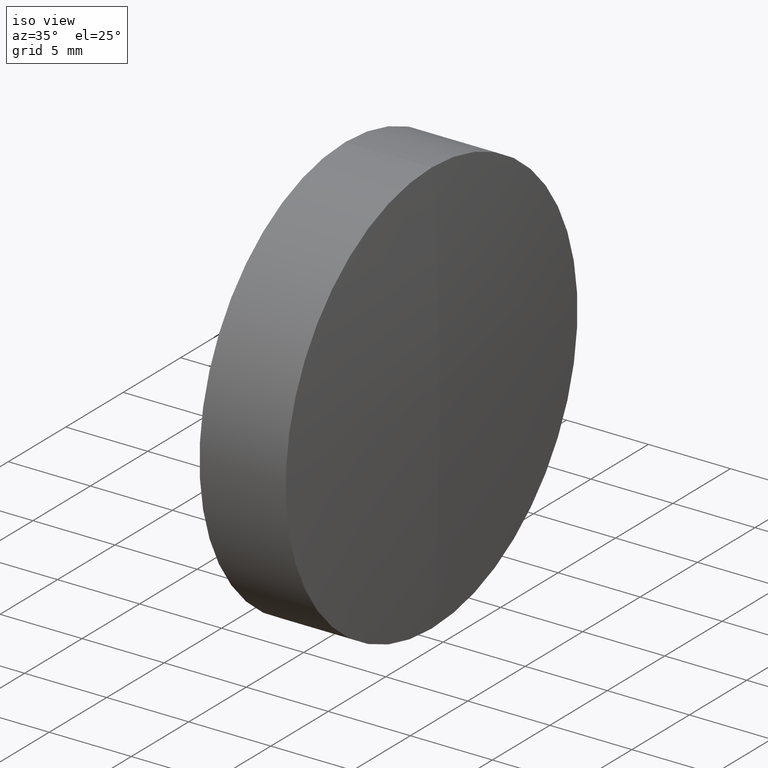
[diagram: clean part render]
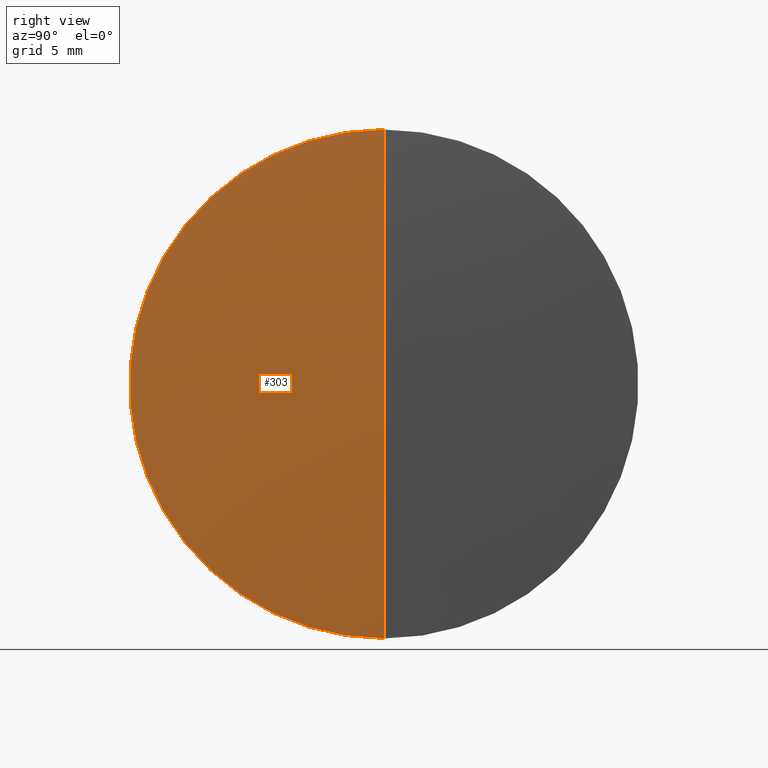
[diagram: tour spotlight — one face highlighted and labeled with its STEP entity id]
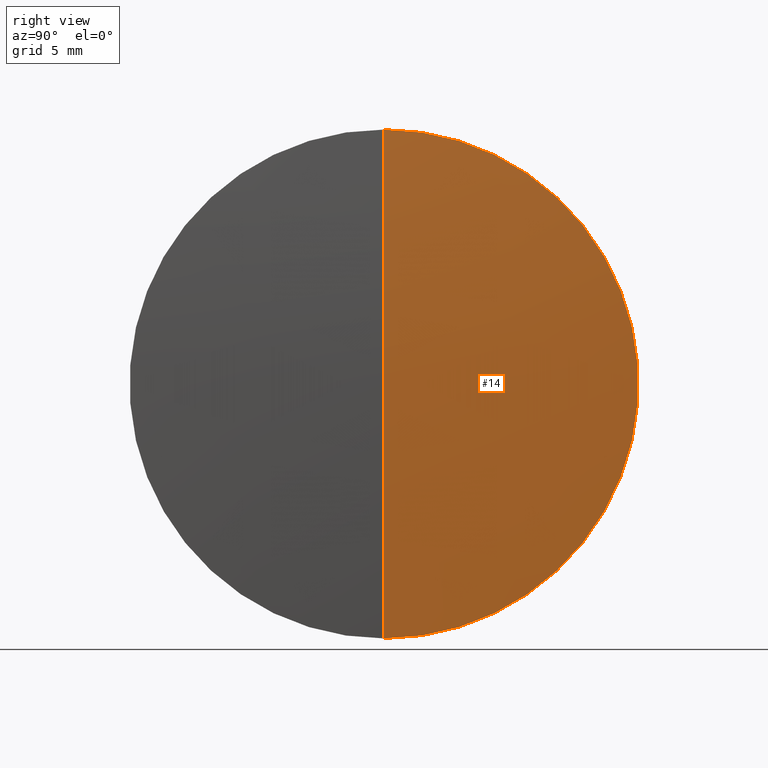
[diagram: tour spotlight — one face highlighted and labeled with its STEP entity id]
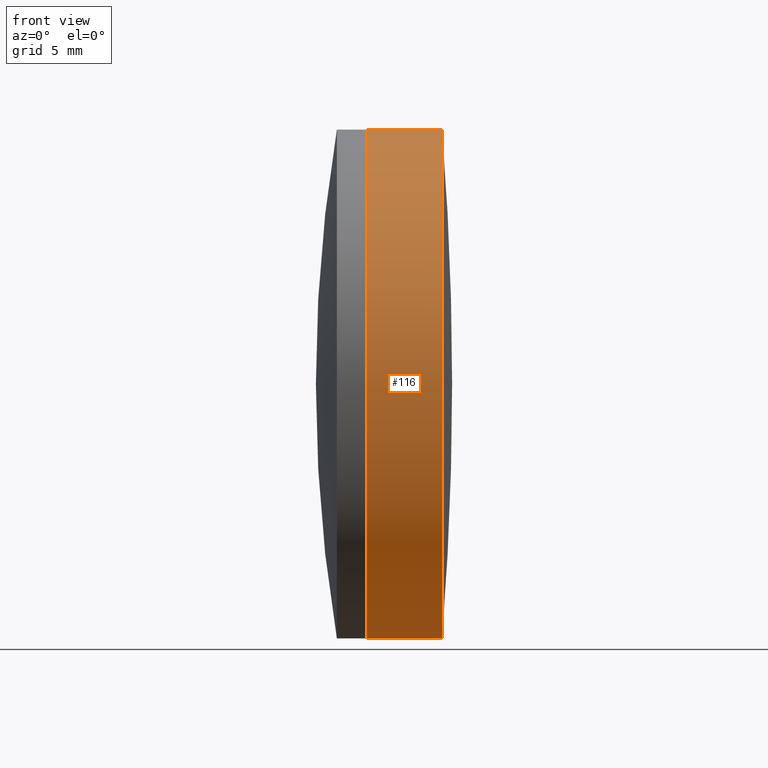
[diagram: tour spotlight — one face highlighted and labeled with its STEP entity id]
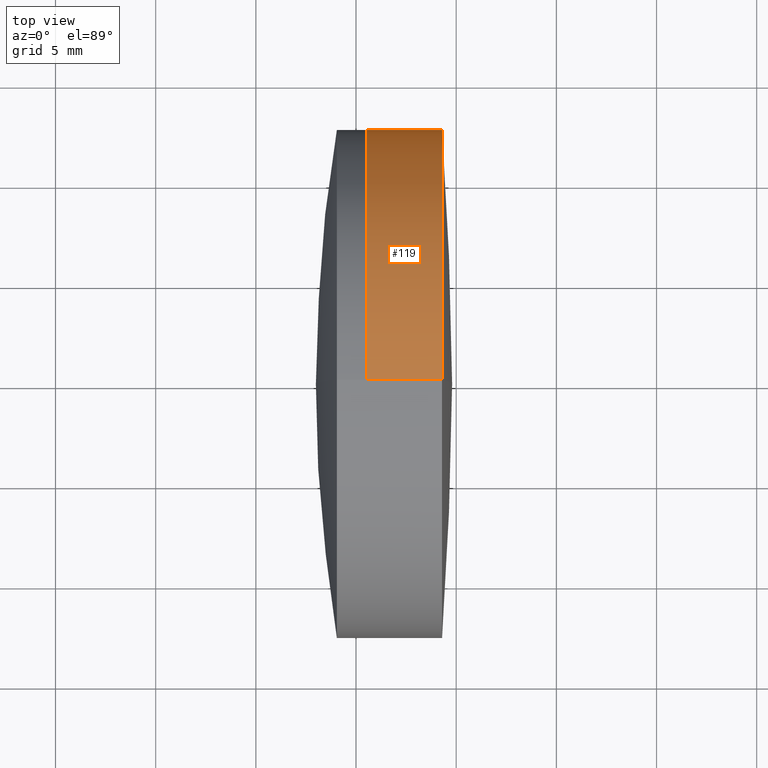
[diagram: tour spotlight — one face highlighted and labeled with its STEP entity id]
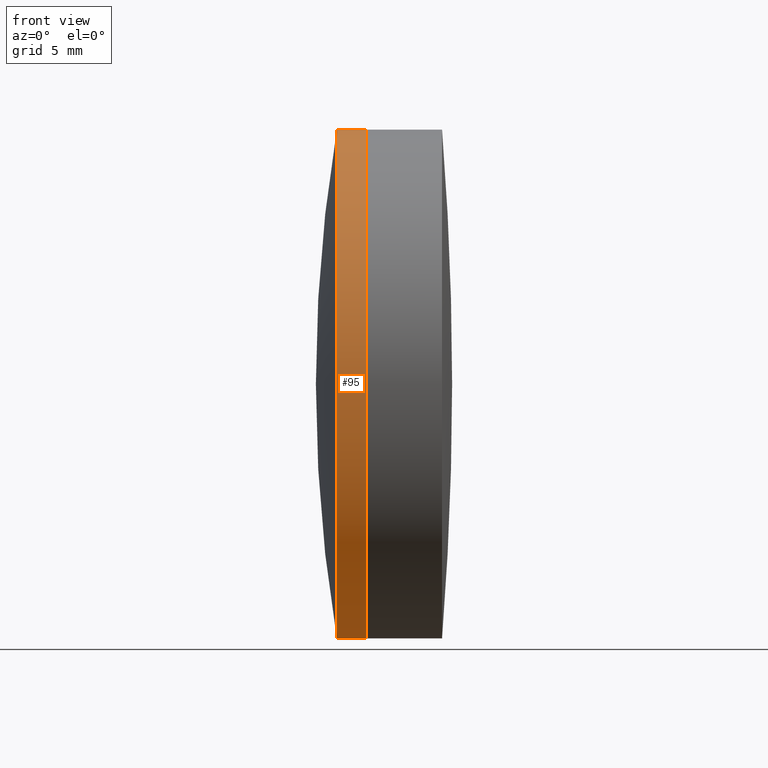
[diagram: tour spotlight — one face highlighted and labeled with its STEP entity id]
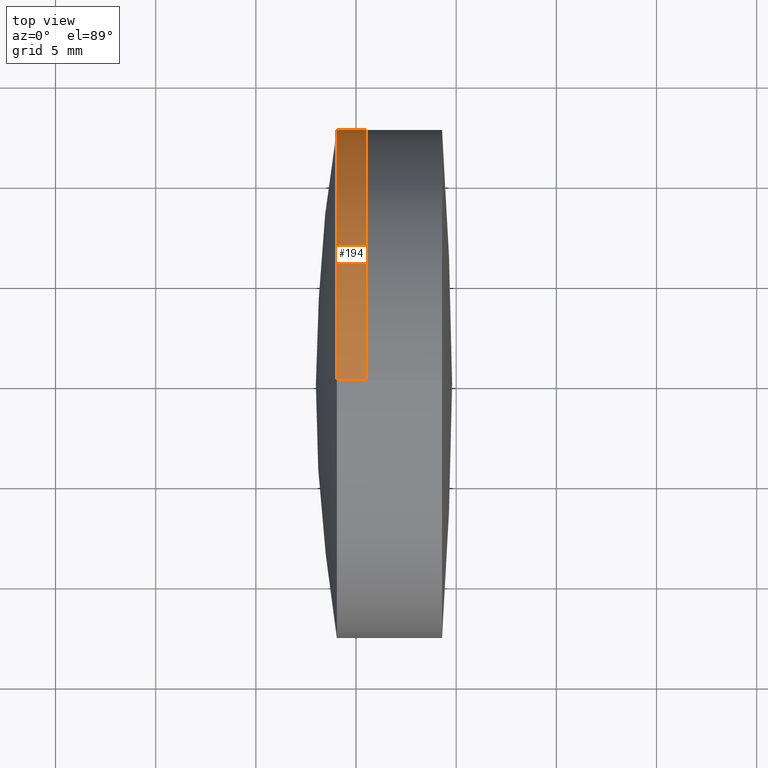
[diagram: tour spotlight — one face highlighted and labeled with its STEP entity id]
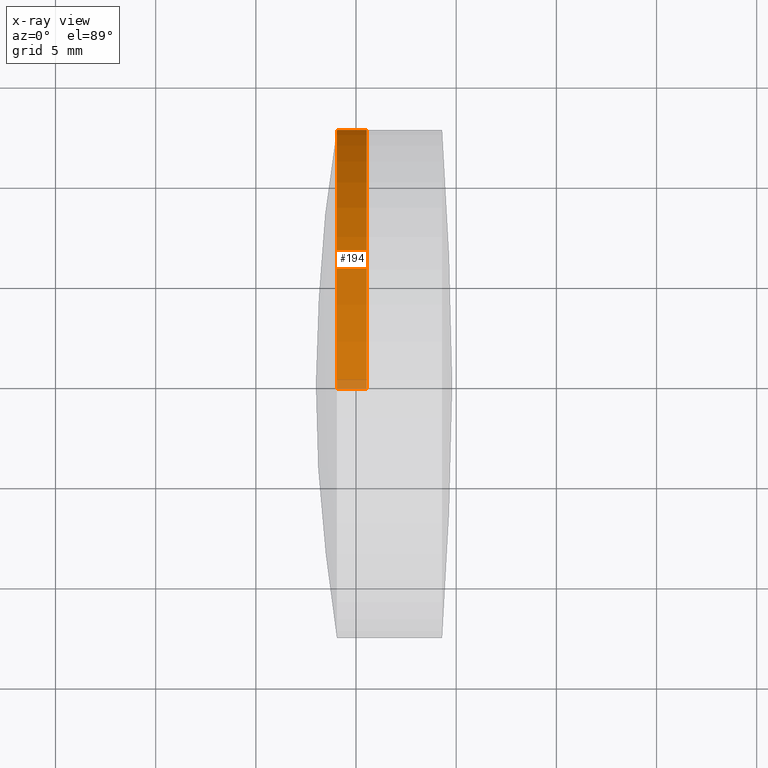
[diagram: x-ray of the same camera — body ghosted, this tour face saturated]
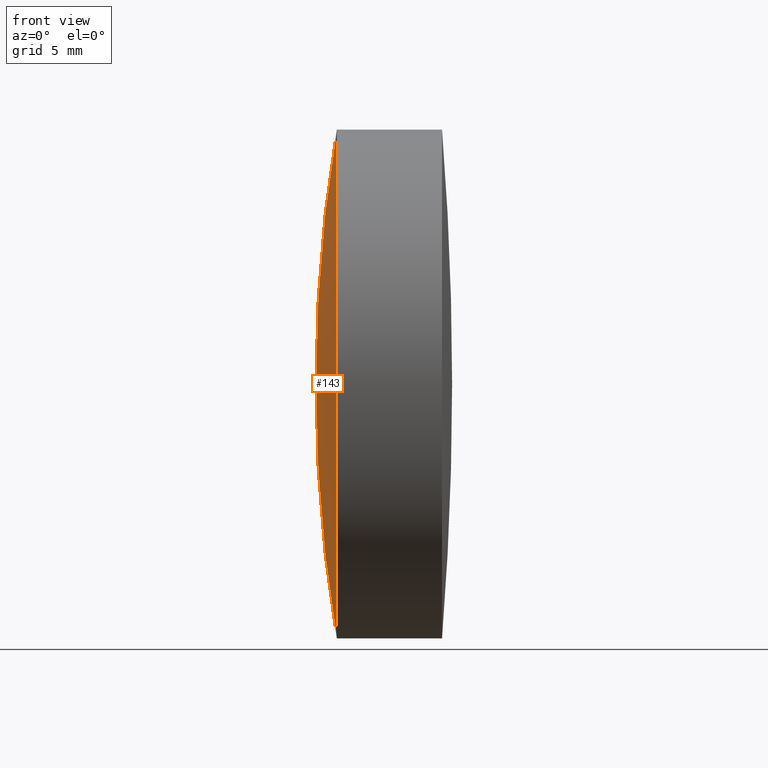
[diagram: tour spotlight — one face highlighted and labeled with its STEP entity id]
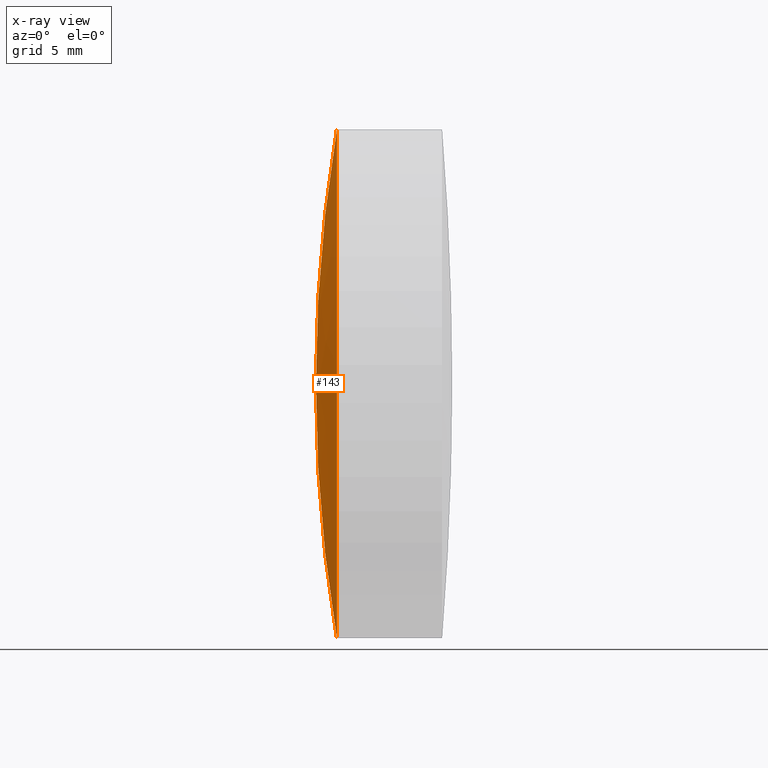
[diagram: x-ray of the same camera — body ghosted, this tour face saturated]
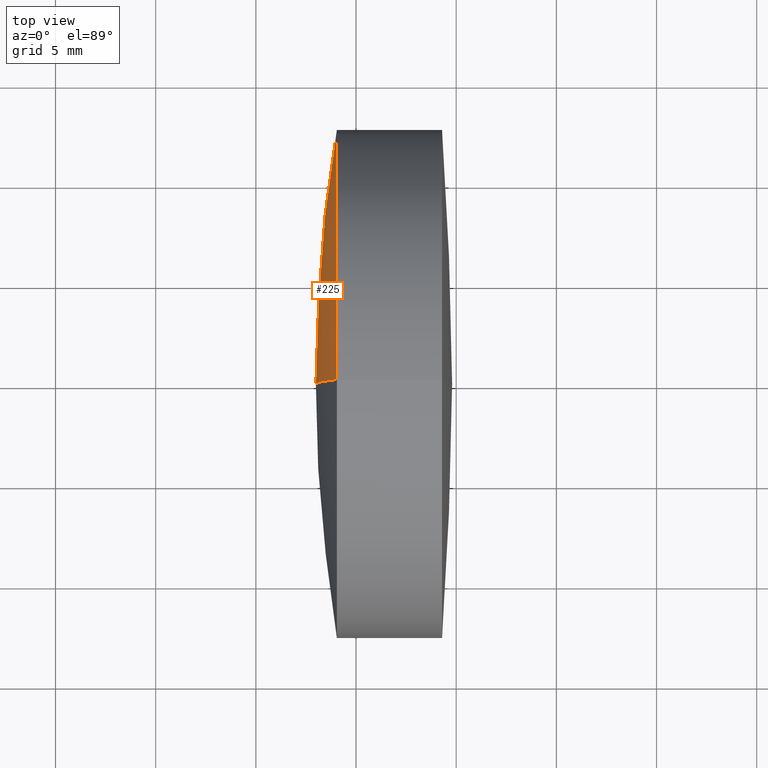
[diagram: tour spotlight — one face highlighted and labeled with its STEP entity id]
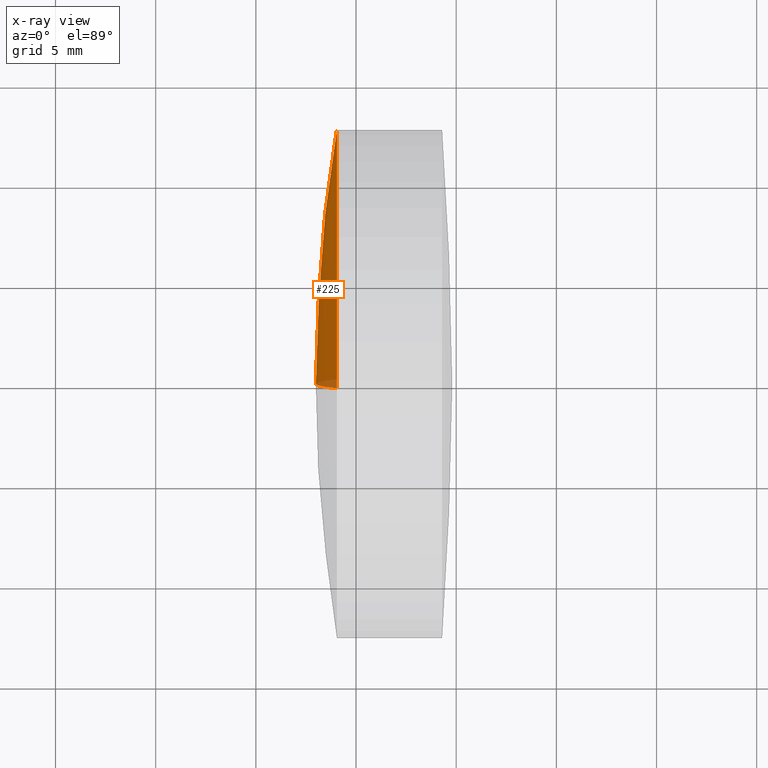
[diagram: x-ray of the same camera — body ghosted, this tour face saturated]
A machine part: a face-by-face anatomy tour. The part has 12 B-rep faces; the first image is the clean iso view, then the 8 largest visible faces are spotlighted one at a time (largest first), each with its STEP entity span.

Face 1 — right view, entity #303. In plain terms, the highlighted spherical surface has radius 160.8 mm.
Definition (entity closure, byte-faithful):
#2 = DIRECTION ( 'NONE',  ( 0.0000000000000000000, 0.0000000000000000000, 1.000000000000000000 ) ) ;
#4 = AXIS2_PLACEMENT_3D ( 'NONE', #15, #67, #40 ) ;
#7 = DIRECTION ( 'NONE',  ( -0.0000000000000000000, 1.000000000000000000, 1.224646799147353200E-016 ) ) ;
#8 = EDGE_CURVE ( 'NONE', #170, #106, #56, .T. ) ;
#9 = ORIENTED_EDGE ( 'NONE', *, *, #8, .T. ) ;
#15 = CARTESIAN_POINT ( 'NONE',  ( 108.9958458084194200, 0.0000000000000000000, 0.0000000000000000000 ) ) ;
#17 = CARTESIAN_POINT ( 'NONE',  ( 269.2935376196242600, 1.555301434917136900E-015, -12.69999999999998200 ) ) ;
#32 = CARTESIAN_POINT ( 'NONE',  ( 269.7958458084194100, 0.0000000000000000000, 9.846160265144721100E-015 ) ) ;
#40 = DIRECTION ( 'NONE',  ( 0.0000000000000000000, 0.0000000000000000000, 1.000000000000000000 ) ) ;
#56 = CIRCLE ( 'NONE', #268, 160.8000000000000400 ) ;
#63 = CARTESIAN_POINT ( 'NONE',  ( 108.9958458084194200, 0.0000000000000000000, 0.0000000000000000000 ) ) ;
#67 = DIRECTION ( 'NONE',  ( 0.0000000000000000000, 1.000000000000000000, 0.0000000000000000000 ) ) ;
#76 = VERTEX_POINT ( 'NONE', #17 ) ;
#79 = DIRECTION ( 'NONE',  ( -1.000000000000000000, -0.0000000000000000000, -0.0000000000000000000 ) ) ;
#84 = AXIS2_PLACEMENT_3D ( 'NONE', #63, #7, #86 ) ;
#86 = DIRECTION ( 'NONE',  ( 0.0000000000000000000, -1.224646799147353000E-016, 1.000000000000000000 ) ) ;
#93 = SPHERICAL_SURFACE ( 'NONE', #4, 160.8000000000000400 ) ;
#103 = CARTESIAN_POINT ( 'NONE',  ( 108.9958458084194200, 0.0000000000000000000, 0.0000000000000000000 ) ) ;
#106 = VERTEX_POINT ( 'NONE', #197 ) ;
#115 = AXIS2_PLACEMENT_3D ( 'NONE', #281, #79, #2 ) ;
#130 = ORIENTED_EDGE ( 'NONE', *, *, #169, .F. ) ;
#166 = CIRCLE ( 'NONE', #84, 160.8000000000000400 ) ;
#169 = EDGE_CURVE ( 'NONE', #170, #76, #166, .T. ) ;
#170 = VERTEX_POINT ( 'NONE', #32 ) ;
#197 = CARTESIAN_POINT ( 'NONE',  ( 269.2935376196242600, 0.0000000000000000000, 12.69999999999998200 ) ) ;
#209 = EDGE_CURVE ( 'NONE', #76, #106, #217, .T. ) ;
#210 = DIRECTION ( 'NONE',  ( 0.0000000000000000000, -1.000000000000000000, 0.0000000000000000000 ) ) ;
#217 = CIRCLE ( 'NONE', #115, 12.69999999999998200 ) ;
#238 = EDGE_LOOP ( 'NONE', ( #130, #9, #347 ) ) ;
#268 = AXIS2_PLACEMENT_3D ( 'NONE', #103, #210, #312 ) ;
#281 = CARTESIAN_POINT ( 'NONE',  ( 269.2935376196242600, 0.0000000000000000000, 0.0000000000000000000 ) ) ;
#293 = FACE_OUTER_BOUND ( 'NONE', #238, .T. ) ;
#303 = ADVANCED_FACE ( 'NONE', ( #293 ), #93, .T. ) ;
#312 = DIRECTION ( 'NONE',  ( 0.0000000000000000000, 0.0000000000000000000, -1.000000000000000000 ) ) ;
#347 = ORIENTED_EDGE ( 'NONE', *, *, #209, .F. ) ;

Face 2 — right view, entity #14. In plain terms, the highlighted spherical surface has radius 160.8 mm.
Definition (entity closure, byte-faithful):
#7 = DIRECTION ( 'NONE',  ( -0.0000000000000000000, 1.000000000000000000, 1.224646799147353200E-016 ) ) ;
#8 = EDGE_CURVE ( 'NONE', #170, #106, #56, .T. ) ;
#14 = ADVANCED_FACE ( 'NONE', ( #329 ), #309, .T. ) ;
#17 = CARTESIAN_POINT ( 'NONE',  ( 269.2935376196242600, 1.555301434917136900E-015, -12.69999999999998200 ) ) ;
#32 = CARTESIAN_POINT ( 'NONE',  ( 269.7958458084194100, 0.0000000000000000000, 9.846160265144721100E-015 ) ) ;
#56 = CIRCLE ( 'NONE', #268, 160.8000000000000400 ) ;
#63 = CARTESIAN_POINT ( 'NONE',  ( 108.9958458084194200, 0.0000000000000000000, 0.0000000000000000000 ) ) ;
#76 = VERTEX_POINT ( 'NONE', #17 ) ;
#84 = AXIS2_PLACEMENT_3D ( 'NONE', #63, #7, #86 ) ;
#86 = DIRECTION ( 'NONE',  ( 0.0000000000000000000, -1.224646799147353000E-016, 1.000000000000000000 ) ) ;
#103 = CARTESIAN_POINT ( 'NONE',  ( 108.9958458084194200, 0.0000000000000000000, 0.0000000000000000000 ) ) ;
#106 = VERTEX_POINT ( 'NONE', #197 ) ;
#117 = DIRECTION ( 'NONE',  ( -1.000000000000000000, -0.0000000000000000000, -0.0000000000000000000 ) ) ;
#158 = DIRECTION ( 'NONE',  ( 0.0000000000000000000, 0.0000000000000000000, 1.000000000000000000 ) ) ;
#166 = CIRCLE ( 'NONE', #84, 160.8000000000000400 ) ;
#169 = EDGE_CURVE ( 'NONE', #170, #76, #166, .T. ) ;
#170 = VERTEX_POINT ( 'NONE', #32 ) ;
#175 = AXIS2_PLACEMENT_3D ( 'NONE', #189, #291, #314 ) ;
#182 = ORIENTED_EDGE ( 'NONE', *, *, #8, .F. ) ;
#185 = CARTESIAN_POINT ( 'NONE',  ( 269.2935376196242600, 0.0000000000000000000, 0.0000000000000000000 ) ) ;
#189 = CARTESIAN_POINT ( 'NONE',  ( 108.9958458084194200, 0.0000000000000000000, 0.0000000000000000000 ) ) ;
#197 = CARTESIAN_POINT ( 'NONE',  ( 269.2935376196242600, 0.0000000000000000000, 12.69999999999998200 ) ) ;
#210 = DIRECTION ( 'NONE',  ( 0.0000000000000000000, -1.000000000000000000, 0.0000000000000000000 ) ) ;
#233 = AXIS2_PLACEMENT_3D ( 'NONE', #185, #117, #158 ) ;
#253 = EDGE_CURVE ( 'NONE', #106, #76, #302, .T. ) ;
#268 = AXIS2_PLACEMENT_3D ( 'NONE', #103, #210, #312 ) ;
#289 = ORIENTED_EDGE ( 'NONE', *, *, #253, .F. ) ;
#291 = DIRECTION ( 'NONE',  ( 0.0000000000000000000, 1.000000000000000000, 0.0000000000000000000 ) ) ;
#302 = CIRCLE ( 'NONE', #233, 12.69999999999998200 ) ;
#309 = SPHERICAL_SURFACE ( 'NONE', #175, 160.8000000000000400 ) ;
#311 = ORIENTED_EDGE ( 'NONE', *, *, #169, .T. ) ;
#312 = DIRECTION ( 'NONE',  ( 0.0000000000000000000, 0.0000000000000000000, -1.000000000000000000 ) ) ;
#314 = DIRECTION ( 'NONE',  ( 0.0000000000000000000, 0.0000000000000000000, 1.000000000000000000 ) ) ;
#329 = FACE_OUTER_BOUND ( 'NONE', #331, .T. ) ;
#331 = EDGE_LOOP ( 'NONE', ( #182, #311, #289 ) ) ;

Face 3 — front view, entity #116. In plain terms, the highlighted cylindrical surface (partial cylindrical patch) has radius 12.7 mm, axis along (-1, -0, -0).
Definition (entity closure, byte-faithful):
#2 = DIRECTION ( 'NONE',  ( 0.0000000000000000000, 0.0000000000000000000, 1.000000000000000000 ) ) ;
#10 = DIRECTION ( 'NONE',  ( -1.000000000000000000, -0.0000000000000000000, -0.0000000000000000000 ) ) ;
#16 = VERTEX_POINT ( 'NONE', #345 ) ;
#17 = CARTESIAN_POINT ( 'NONE',  ( 269.2935376196242600, 1.555301434917136900E-015, -12.69999999999998200 ) ) ;
#58 = EDGE_CURVE ( 'NONE', #106, #326, #315, .T. ) ;
#60 = DIRECTION ( 'NONE',  ( 0.0000000000000000000, 0.0000000000000000000, 1.000000000000000000 ) ) ;
#76 = VERTEX_POINT ( 'NONE', #17 ) ;
#79 = DIRECTION ( 'NONE',  ( -1.000000000000000000, -0.0000000000000000000, -0.0000000000000000000 ) ) ;
#80 = AXIS2_PLACEMENT_3D ( 'NONE', #338, #10, #126 ) ;
#92 = EDGE_CURVE ( 'NONE', #76, #16, #240, .T. ) ;
#98 = CARTESIAN_POINT ( 'NONE',  ( 265.5340676750454300, 0.0000000000000000000, 0.0000000000000000000 ) ) ;
#106 = VERTEX_POINT ( 'NONE', #197 ) ;
#115 = AXIS2_PLACEMENT_3D ( 'NONE', #281, #79, #2 ) ;
#116 = ADVANCED_FACE ( 'NONE', ( #229 ), #180, .T. ) ;
#118 = ORIENTED_EDGE ( 'NONE', *, *, #209, .T. ) ;
#126 = DIRECTION ( 'NONE',  ( 0.0000000000000000000, 0.0000000000000000000, 1.000000000000000000 ) ) ;
#142 = ORIENTED_EDGE ( 'NONE', *, *, #92, .F. ) ;
#154 = ORIENTED_EDGE ( 'NONE', *, *, #58, .T. ) ;
#155 = ORIENTED_EDGE ( 'NONE', *, *, #260, .F. ) ;
#164 = CARTESIAN_POINT ( 'NONE',  ( 265.5340676750454300, 0.0000000000000000000, 12.69999999999999900 ) ) ;
#167 = CIRCLE ( 'NONE', #333, 12.69999999999999600 ) ;
#178 = CARTESIAN_POINT ( 'NONE',  ( -0.5519199926577972300, 0.0000000000000000000, 12.69999999999998900 ) ) ;
#180 = CYLINDRICAL_SURFACE ( 'NONE', #80, 12.69999999999998900 ) ;
#197 = CARTESIAN_POINT ( 'NONE',  ( 269.2935376196242600, 0.0000000000000000000, 12.69999999999998200 ) ) ;
#204 = CARTESIAN_POINT ( 'NONE',  ( -0.5519199926577972300, 1.555301434917137200E-015, -12.69999999999998900 ) ) ;
#209 = EDGE_CURVE ( 'NONE', #76, #106, #217, .T. ) ;
#217 = CIRCLE ( 'NONE', #115, 12.69999999999998200 ) ;
#224 = DIRECTION ( 'NONE',  ( -1.000000000000000000, -0.0000000000000000000, -0.0000000000000000000 ) ) ;
#227 = VECTOR ( 'NONE', #325, 1000.000000000000000 ) ;
#229 = FACE_OUTER_BOUND ( 'NONE', #340, .T. ) ;
#240 = LINE ( 'NONE', #204, #227 ) ;
#260 = EDGE_CURVE ( 'NONE', #16, #326, #167, .T. ) ;
#281 = CARTESIAN_POINT ( 'NONE',  ( 269.2935376196242600, 0.0000000000000000000, 0.0000000000000000000 ) ) ;
#300 = VECTOR ( 'NONE', #319, 1000.000000000000000 ) ;
#315 = LINE ( 'NONE', #178, #300 ) ;
#319 = DIRECTION ( 'NONE',  ( -1.000000000000000000, -0.0000000000000000000, -0.0000000000000000000 ) ) ;
#325 = DIRECTION ( 'NONE',  ( -1.000000000000000000, -0.0000000000000000000, -0.0000000000000000000 ) ) ;
#326 = VERTEX_POINT ( 'NONE', #164 ) ;
#333 = AXIS2_PLACEMENT_3D ( 'NONE', #98, #224, #60 ) ;
#338 = CARTESIAN_POINT ( 'NONE',  ( -0.5519199926577972300, 0.0000000000000000000, 0.0000000000000000000 ) ) ;
#340 = EDGE_LOOP ( 'NONE', ( #142, #118, #154, #155 ) ) ;
#345 = CARTESIAN_POINT ( 'NONE',  ( 265.5340676750454300, 1.555301434917138400E-015, -12.70000000000000300 ) ) ;

Face 4 — top view, entity #119. In plain terms, the highlighted cylindrical surface (partial cylindrical patch) has radius 12.7 mm, axis along (-1, -0, -0).
Definition (entity closure, byte-faithful):
#12 = AXIS2_PLACEMENT_3D ( 'NONE', #262, #343, #104 ) ;
#16 = VERTEX_POINT ( 'NONE', #345 ) ;
#17 = CARTESIAN_POINT ( 'NONE',  ( 269.2935376196242600, 1.555301434917136900E-015, -12.69999999999998200 ) ) ;
#36 = CIRCLE ( 'NONE', #162, 12.69999999999999600 ) ;
#38 = EDGE_CURVE ( 'NONE', #326, #16, #36, .T. ) ;
#53 = ORIENTED_EDGE ( 'NONE', *, *, #92, .T. ) ;
#58 = EDGE_CURVE ( 'NONE', #106, #326, #315, .T. ) ;
#74 = EDGE_LOOP ( 'NONE', ( #318, #53, #184, #198 ) ) ;
#76 = VERTEX_POINT ( 'NONE', #17 ) ;
#92 = EDGE_CURVE ( 'NONE', #76, #16, #240, .T. ) ;
#104 = DIRECTION ( 'NONE',  ( 0.0000000000000000000, 0.0000000000000000000, 1.000000000000000000 ) ) ;
#106 = VERTEX_POINT ( 'NONE', #197 ) ;
#117 = DIRECTION ( 'NONE',  ( -1.000000000000000000, -0.0000000000000000000, -0.0000000000000000000 ) ) ;
#119 = ADVANCED_FACE ( 'NONE', ( #337 ), #139, .T. ) ;
#127 = DIRECTION ( 'NONE',  ( -1.000000000000000000, -0.0000000000000000000, -0.0000000000000000000 ) ) ;
#139 = CYLINDRICAL_SURFACE ( 'NONE', #12, 12.69999999999998900 ) ;
#150 = CARTESIAN_POINT ( 'NONE',  ( 265.5340676750454300, 0.0000000000000000000, 0.0000000000000000000 ) ) ;
#158 = DIRECTION ( 'NONE',  ( 0.0000000000000000000, 0.0000000000000000000, 1.000000000000000000 ) ) ;
#162 = AXIS2_PLACEMENT_3D ( 'NONE', #150, #127, #234 ) ;
#164 = CARTESIAN_POINT ( 'NONE',  ( 265.5340676750454300, 0.0000000000000000000, 12.69999999999999900 ) ) ;
#178 = CARTESIAN_POINT ( 'NONE',  ( -0.5519199926577972300, 0.0000000000000000000, 12.69999999999998900 ) ) ;
#184 = ORIENTED_EDGE ( 'NONE', *, *, #38, .F. ) ;
#185 = CARTESIAN_POINT ( 'NONE',  ( 269.2935376196242600, 0.0000000000000000000, 0.0000000000000000000 ) ) ;
#197 = CARTESIAN_POINT ( 'NONE',  ( 269.2935376196242600, 0.0000000000000000000, 12.69999999999998200 ) ) ;
#198 = ORIENTED_EDGE ( 'NONE', *, *, #58, .F. ) ;
#204 = CARTESIAN_POINT ( 'NONE',  ( -0.5519199926577972300, 1.555301434917137200E-015, -12.69999999999998900 ) ) ;
#227 = VECTOR ( 'NONE', #325, 1000.000000000000000 ) ;
#233 = AXIS2_PLACEMENT_3D ( 'NONE', #185, #117, #158 ) ;
#234 = DIRECTION ( 'NONE',  ( 0.0000000000000000000, 0.0000000000000000000, 1.000000000000000000 ) ) ;
#240 = LINE ( 'NONE', #204, #227 ) ;
#253 = EDGE_CURVE ( 'NONE', #106, #76, #302, .T. ) ;
#262 = CARTESIAN_POINT ( 'NONE',  ( -0.5519199926577972300, 0.0000000000000000000, 0.0000000000000000000 ) ) ;
#300 = VECTOR ( 'NONE', #319, 1000.000000000000000 ) ;
#302 = CIRCLE ( 'NONE', #233, 12.69999999999998200 ) ;
#315 = LINE ( 'NONE', #178, #300 ) ;
#318 = ORIENTED_EDGE ( 'NONE', *, *, #253, .T. ) ;
#319 = DIRECTION ( 'NONE',  ( -1.000000000000000000, -0.0000000000000000000, -0.0000000000000000000 ) ) ;
#325 = DIRECTION ( 'NONE',  ( -1.000000000000000000, -0.0000000000000000000, -0.0000000000000000000 ) ) ;
#326 = VERTEX_POINT ( 'NONE', #164 ) ;
#337 = FACE_OUTER_BOUND ( 'NONE', #74, .T. ) ;
#343 = DIRECTION ( 'NONE',  ( -1.000000000000000000, -0.0000000000000000000, -0.0000000000000000000 ) ) ;
#345 = CARTESIAN_POINT ( 'NONE',  ( 265.5340676750454300, 1.555301434917138400E-015, -12.70000000000000300 ) ) ;

Face 5 — front view, entity #95. In plain terms, the highlighted cylindrical surface (partial cylindrical patch) has radius 12.7 mm, axis along (-1, -0, -0).
Definition (entity closure, byte-faithful):
#13 = FACE_OUTER_BOUND ( 'NONE', #83, .T. ) ;
#43 = CIRCLE ( 'NONE', #297, 12.69999999999999600 ) ;
#46 = DIRECTION ( 'NONE',  ( 0.0000000000000000000, 0.0000000000000000000, 1.000000000000000000 ) ) ;
#50 = DIRECTION ( 'NONE',  ( 0.0000000000000000000, 0.0000000000000000000, 1.000000000000000000 ) ) ;
#69 = CIRCLE ( 'NONE', #299, 12.69999999999999600 ) ;
#73 = CARTESIAN_POINT ( 'NONE',  ( 265.5340676750454300, 0.0000000000000000000, 0.0000000000000000000 ) ) ;
#83 = EDGE_LOOP ( 'NONE', ( #266, #114, #207, #255 ) ) ;
#91 = DIRECTION ( 'NONE',  ( 0.0000000000000000000, 0.0000000000000000000, 1.000000000000000000 ) ) ;
#95 = ADVANCED_FACE ( 'NONE', ( #13 ), #148, .T. ) ;
#102 = DIRECTION ( 'NONE',  ( -1.000000000000000000, -0.0000000000000000000, -0.0000000000000000000 ) ) ;
#105 = DIRECTION ( 'NONE',  ( -1.000000000000000000, -0.0000000000000000000, -0.0000000000000000000 ) ) ;
#108 = VERTEX_POINT ( 'NONE', #177 ) ;
#110 = EDGE_CURVE ( 'NONE', #265, #174, #43, .T. ) ;
#114 = ORIENTED_EDGE ( 'NONE', *, *, #287, .T. ) ;
#120 = CARTESIAN_POINT ( 'NONE',  ( 235.8074506907544200, 1.555301434917138000E-015, -12.69999999999999600 ) ) ;
#135 = CARTESIAN_POINT ( 'NONE',  ( 264.0421391705302200, 0.0000000000000000000, 12.69999999999998900 ) ) ;
#148 = CYLINDRICAL_SURFACE ( 'NONE', #236, 12.69999999999999600 ) ;
#151 = EDGE_CURVE ( 'NONE', #108, #174, #222, .T. ) ;
#160 = VECTOR ( 'NONE', #264, 1000.000000000000000 ) ;
#163 = VERTEX_POINT ( 'NONE', #213 ) ;
#174 = VERTEX_POINT ( 'NONE', #135 ) ;
#177 = CARTESIAN_POINT ( 'NONE',  ( 265.5340676750454300, 0.0000000000000000000, 12.69999999999999600 ) ) ;
#183 = CARTESIAN_POINT ( 'NONE',  ( 235.8074506907544200, 0.0000000000000000000, 12.69999999999999600 ) ) ;
#207 = ORIENTED_EDGE ( 'NONE', *, *, #151, .T. ) ;
#213 = CARTESIAN_POINT ( 'NONE',  ( 265.5340676750454300, 1.555301434917138000E-015, -12.69999999999999600 ) ) ;
#222 = LINE ( 'NONE', #183, #344 ) ;
#236 = AXIS2_PLACEMENT_3D ( 'NONE', #336, #105, #46 ) ;
#237 = LINE ( 'NONE', #120, #160 ) ;
#255 = ORIENTED_EDGE ( 'NONE', *, *, #110, .F. ) ;
#256 = CARTESIAN_POINT ( 'NONE',  ( 264.0421391705302200, 1.555301434917137400E-015, -12.69999999999999200 ) ) ;
#257 = CARTESIAN_POINT ( 'NONE',  ( 264.0421391705302200, 0.0000000000000000000, 0.0000000000000000000 ) ) ;
#259 = DIRECTION ( 'NONE',  ( -1.000000000000000000, -0.0000000000000000000, -0.0000000000000000000 ) ) ;
#261 = DIRECTION ( 'NONE',  ( -1.000000000000000000, -0.0000000000000000000, -0.0000000000000000000 ) ) ;
#264 = DIRECTION ( 'NONE',  ( -1.000000000000000000, -0.0000000000000000000, -0.0000000000000000000 ) ) ;
#265 = VERTEX_POINT ( 'NONE', #256 ) ;
#266 = ORIENTED_EDGE ( 'NONE', *, *, #317, .F. ) ;
#287 = EDGE_CURVE ( 'NONE', #163, #108, #69, .T. ) ;
#297 = AXIS2_PLACEMENT_3D ( 'NONE', #257, #259, #50 ) ;
#299 = AXIS2_PLACEMENT_3D ( 'NONE', #73, #102, #91 ) ;
#317 = EDGE_CURVE ( 'NONE', #163, #265, #237, .T. ) ;
#336 = CARTESIAN_POINT ( 'NONE',  ( 235.8074506907544200, 0.0000000000000000000, 0.0000000000000000000 ) ) ;
#344 = VECTOR ( 'NONE', #261, 1000.000000000000000 ) ;

Face 6 — top view, entity #194. An x-ray twin of the same camera follows (body ghosted, this face saturated) — the face is partly hidden behind the body. In plain terms, the highlighted cylindrical surface (partial cylindrical patch) has radius 12.7 mm, axis along (-1, -0, -0).
Definition (entity closure, byte-faithful):
#18 = AXIS2_PLACEMENT_3D ( 'NONE', #101, #88, #173 ) ;
#24 = EDGE_CURVE ( 'NONE', #108, #163, #144, .T. ) ;
#41 = AXIS2_PLACEMENT_3D ( 'NONE', #111, #147, #276 ) ;
#88 = DIRECTION ( 'NONE',  ( -1.000000000000000000, -0.0000000000000000000, -0.0000000000000000000 ) ) ;
#101 = CARTESIAN_POINT ( 'NONE',  ( 265.5340676750454300, 0.0000000000000000000, 0.0000000000000000000 ) ) ;
#108 = VERTEX_POINT ( 'NONE', #177 ) ;
#111 = CARTESIAN_POINT ( 'NONE',  ( 235.8074506907544200, 0.0000000000000000000, 0.0000000000000000000 ) ) ;
#112 = CIRCLE ( 'NONE', #199, 12.69999999999999600 ) ;
#113 = FACE_OUTER_BOUND ( 'NONE', #131, .T. ) ;
#120 = CARTESIAN_POINT ( 'NONE',  ( 235.8074506907544200, 1.555301434917138000E-015, -12.69999999999999600 ) ) ;
#131 = EDGE_LOOP ( 'NONE', ( #176, #141, #335, #250 ) ) ;
#135 = CARTESIAN_POINT ( 'NONE',  ( 264.0421391705302200, 0.0000000000000000000, 12.69999999999998900 ) ) ;
#136 = EDGE_CURVE ( 'NONE', #174, #265, #112, .T. ) ;
#140 = CYLINDRICAL_SURFACE ( 'NONE', #41, 12.69999999999999600 ) ;
#141 = ORIENTED_EDGE ( 'NONE', *, *, #317, .T. ) ;
#144 = CIRCLE ( 'NONE', #18, 12.69999999999999600 ) ;
#147 = DIRECTION ( 'NONE',  ( -1.000000000000000000, -0.0000000000000000000, -0.0000000000000000000 ) ) ;
#151 = EDGE_CURVE ( 'NONE', #108, #174, #222, .T. ) ;
#160 = VECTOR ( 'NONE', #264, 1000.000000000000000 ) ;
#163 = VERTEX_POINT ( 'NONE', #213 ) ;
#173 = DIRECTION ( 'NONE',  ( 0.0000000000000000000, 0.0000000000000000000, 1.000000000000000000 ) ) ;
#174 = VERTEX_POINT ( 'NONE', #135 ) ;
#176 = ORIENTED_EDGE ( 'NONE', *, *, #24, .T. ) ;
#177 = CARTESIAN_POINT ( 'NONE',  ( 265.5340676750454300, 0.0000000000000000000, 12.69999999999999600 ) ) ;
#183 = CARTESIAN_POINT ( 'NONE',  ( 235.8074506907544200, 0.0000000000000000000, 12.69999999999999600 ) ) ;
#187 = DIRECTION ( 'NONE',  ( 0.0000000000000000000, 0.0000000000000000000, 1.000000000000000000 ) ) ;
#194 = ADVANCED_FACE ( 'NONE', ( #113 ), #140, .T. ) ;
#199 = AXIS2_PLACEMENT_3D ( 'NONE', #271, #307, #187 ) ;
#213 = CARTESIAN_POINT ( 'NONE',  ( 265.5340676750454300, 1.555301434917138000E-015, -12.69999999999999600 ) ) ;
#222 = LINE ( 'NONE', #183, #344 ) ;
#237 = LINE ( 'NONE', #120, #160 ) ;
#250 = ORIENTED_EDGE ( 'NONE', *, *, #151, .F. ) ;
#256 = CARTESIAN_POINT ( 'NONE',  ( 264.0421391705302200, 1.555301434917137400E-015, -12.69999999999999200 ) ) ;
#261 = DIRECTION ( 'NONE',  ( -1.000000000000000000, -0.0000000000000000000, -0.0000000000000000000 ) ) ;
#264 = DIRECTION ( 'NONE',  ( -1.000000000000000000, -0.0000000000000000000, -0.0000000000000000000 ) ) ;
#265 = VERTEX_POINT ( 'NONE', #256 ) ;
#271 = CARTESIAN_POINT ( 'NONE',  ( 264.0421391705302200, 0.0000000000000000000, 0.0000000000000000000 ) ) ;
#276 = DIRECTION ( 'NONE',  ( 0.0000000000000000000, 0.0000000000000000000, 1.000000000000000000 ) ) ;
#307 = DIRECTION ( 'NONE',  ( -1.000000000000000000, -0.0000000000000000000, -0.0000000000000000000 ) ) ;
#317 = EDGE_CURVE ( 'NONE', #163, #265, #237, .T. ) ;
#335 = ORIENTED_EDGE ( 'NONE', *, *, #136, .F. ) ;
#344 = VECTOR ( 'NONE', #261, 1000.000000000000000 ) ;

Face 7 — front view, entity #143. An x-ray twin of the same camera follows (body ghosted, this face saturated) — the face is partly hidden behind the body. In plain terms, the highlighted spherical surface has radius 77.6 mm.
Definition (entity closure, byte-faithful):
#1 = CARTESIAN_POINT ( 'NONE',  ( 340.5958458084193700, 0.0000000000000000000, -4.289825097912383600E-015 ) ) ;
#42 = CARTESIAN_POINT ( 'NONE',  ( 340.5958458084193700, 0.0000000000000000000, -4.289825097912383600E-015 ) ) ;
#43 = CIRCLE ( 'NONE', #297, 12.69999999999999600 ) ;
#50 = DIRECTION ( 'NONE',  ( 0.0000000000000000000, 0.0000000000000000000, 1.000000000000000000 ) ) ;
#64 = DIRECTION ( 'NONE',  ( 0.0000000000000000000, 0.0000000000000000000, -1.000000000000000000 ) ) ;
#81 = CIRCLE ( 'NONE', #285, 77.59999999999999400 ) ;
#82 = CIRCLE ( 'NONE', #205, 77.59999999999999400 ) ;
#99 = ORIENTED_EDGE ( 'NONE', *, *, #157, .F. ) ;
#110 = EDGE_CURVE ( 'NONE', #265, #174, #43, .T. ) ;
#135 = CARTESIAN_POINT ( 'NONE',  ( 264.0421391705302200, 0.0000000000000000000, 12.69999999999998900 ) ) ;
#143 = ADVANCED_FACE ( 'NONE', ( #159 ), #321, .T. ) ;
#157 = EDGE_CURVE ( 'NONE', #265, #277, #81, .T. ) ;
#159 = FACE_OUTER_BOUND ( 'NONE', #274, .T. ) ;
#168 = DIRECTION ( 'NONE',  ( 0.0000000000000000000, -1.224646799147353000E-016, 1.000000000000000000 ) ) ;
#172 = ORIENTED_EDGE ( 'NONE', *, *, #245, .T. ) ;
#174 = VERTEX_POINT ( 'NONE', #135 ) ;
#195 = CARTESIAN_POINT ( 'NONE',  ( 262.9958458084194000, 0.0000000000000000000, 4.618044827793462100E-016 ) ) ;
#205 = AXIS2_PLACEMENT_3D ( 'NONE', #1, #334, #64 ) ;
#216 = DIRECTION ( 'NONE',  ( -0.0000000000000000000, 1.000000000000000000, 1.224646799147353200E-016 ) ) ;
#220 = DIRECTION ( 'NONE',  ( 0.0000000000000000000, 1.000000000000000000, 0.0000000000000000000 ) ) ;
#244 = CARTESIAN_POINT ( 'NONE',  ( 340.5958458084193700, 0.0000000000000000000, -4.289825097912383600E-015 ) ) ;
#245 = EDGE_CURVE ( 'NONE', #174, #277, #82, .T. ) ;
#256 = CARTESIAN_POINT ( 'NONE',  ( 264.0421391705302200, 1.555301434917137400E-015, -12.69999999999999200 ) ) ;
#257 = CARTESIAN_POINT ( 'NONE',  ( 264.0421391705302200, 0.0000000000000000000, 0.0000000000000000000 ) ) ;
#259 = DIRECTION ( 'NONE',  ( -1.000000000000000000, -0.0000000000000000000, -0.0000000000000000000 ) ) ;
#265 = VERTEX_POINT ( 'NONE', #256 ) ;
#274 = EDGE_LOOP ( 'NONE', ( #99, #286, #172 ) ) ;
#277 = VERTEX_POINT ( 'NONE', #195 ) ;
#285 = AXIS2_PLACEMENT_3D ( 'NONE', #244, #216, #168 ) ;
#286 = ORIENTED_EDGE ( 'NONE', *, *, #110, .T. ) ;
#297 = AXIS2_PLACEMENT_3D ( 'NONE', #257, #259, #50 ) ;
#313 = AXIS2_PLACEMENT_3D ( 'NONE', #42, #220, #342 ) ;
#321 = SPHERICAL_SURFACE ( 'NONE', #313, 77.59999999999999400 ) ;
#334 = DIRECTION ( 'NONE',  ( 0.0000000000000000000, -1.000000000000000000, 0.0000000000000000000 ) ) ;
#342 = DIRECTION ( 'NONE',  ( 0.0000000000000000000, 0.0000000000000000000, 1.000000000000000000 ) ) ;

Face 8 — top view, entity #225. An x-ray twin of the same camera follows (body ghosted, this face saturated) — the face is partly hidden behind the body. In plain terms, the highlighted spherical surface has radius 77.6 mm.
Definition (entity closure, byte-faithful):
#1 = CARTESIAN_POINT ( 'NONE',  ( 340.5958458084193700, 0.0000000000000000000, -4.289825097912383600E-015 ) ) ;
#5 = FACE_OUTER_BOUND ( 'NONE', #44, .T. ) ;
#30 = SPHERICAL_SURFACE ( 'NONE', #223, 77.59999999999999400 ) ;
#34 = ORIENTED_EDGE ( 'NONE', *, *, #245, .F. ) ;
#44 = EDGE_LOOP ( 'NONE', ( #188, #221, #34 ) ) ;
#55 = DIRECTION ( 'NONE',  ( 0.0000000000000000000, 0.0000000000000000000, 1.000000000000000000 ) ) ;
#64 = DIRECTION ( 'NONE',  ( 0.0000000000000000000, 0.0000000000000000000, -1.000000000000000000 ) ) ;
#81 = CIRCLE ( 'NONE', #285, 77.59999999999999400 ) ;
#82 = CIRCLE ( 'NONE', #205, 77.59999999999999400 ) ;
#112 = CIRCLE ( 'NONE', #199, 12.69999999999999600 ) ;
#135 = CARTESIAN_POINT ( 'NONE',  ( 264.0421391705302200, 0.0000000000000000000, 12.69999999999998900 ) ) ;
#136 = EDGE_CURVE ( 'NONE', #174, #265, #112, .T. ) ;
#157 = EDGE_CURVE ( 'NONE', #265, #277, #81, .T. ) ;
#168 = DIRECTION ( 'NONE',  ( 0.0000000000000000000, -1.224646799147353000E-016, 1.000000000000000000 ) ) ;
#174 = VERTEX_POINT ( 'NONE', #135 ) ;
#187 = DIRECTION ( 'NONE',  ( 0.0000000000000000000, 0.0000000000000000000, 1.000000000000000000 ) ) ;
#188 = ORIENTED_EDGE ( 'NONE', *, *, #136, .T. ) ;
#195 = CARTESIAN_POINT ( 'NONE',  ( 262.9958458084194000, 0.0000000000000000000, 4.618044827793462100E-016 ) ) ;
#199 = AXIS2_PLACEMENT_3D ( 'NONE', #271, #307, #187 ) ;
#205 = AXIS2_PLACEMENT_3D ( 'NONE', #1, #334, #64 ) ;
#216 = DIRECTION ( 'NONE',  ( -0.0000000000000000000, 1.000000000000000000, 1.224646799147353200E-016 ) ) ;
#221 = ORIENTED_EDGE ( 'NONE', *, *, #157, .T. ) ;
#223 = AXIS2_PLACEMENT_3D ( 'NONE', #295, #235, #55 ) ;
#225 = ADVANCED_FACE ( 'NONE', ( #5 ), #30, .T. ) ;
#235 = DIRECTION ( 'NONE',  ( 0.0000000000000000000, 1.000000000000000000, 0.0000000000000000000 ) ) ;
#244 = CARTESIAN_POINT ( 'NONE',  ( 340.5958458084193700, 0.0000000000000000000, -4.289825097912383600E-015 ) ) ;
#245 = EDGE_CURVE ( 'NONE', #174, #277, #82, .T. ) ;
#256 = CARTESIAN_POINT ( 'NONE',  ( 264.0421391705302200, 1.555301434917137400E-015, -12.69999999999999200 ) ) ;
#265 = VERTEX_POINT ( 'NONE', #256 ) ;
#271 = CARTESIAN_POINT ( 'NONE',  ( 264.0421391705302200, 0.0000000000000000000, 0.0000000000000000000 ) ) ;
#277 = VERTEX_POINT ( 'NONE', #195 ) ;
#285 = AXIS2_PLACEMENT_3D ( 'NONE', #244, #216, #168 ) ;
#295 = CARTESIAN_POINT ( 'NONE',  ( 340.5958458084193700, 0.0000000000000000000, -4.289825097912383600E-015 ) ) ;
#307 = DIRECTION ( 'NONE',  ( -1.000000000000000000, -0.0000000000000000000, -0.0000000000000000000 ) ) ;
#334 = DIRECTION ( 'NONE',  ( 0.0000000000000000000, -1.000000000000000000, 0.0000000000000000000 ) ) ;